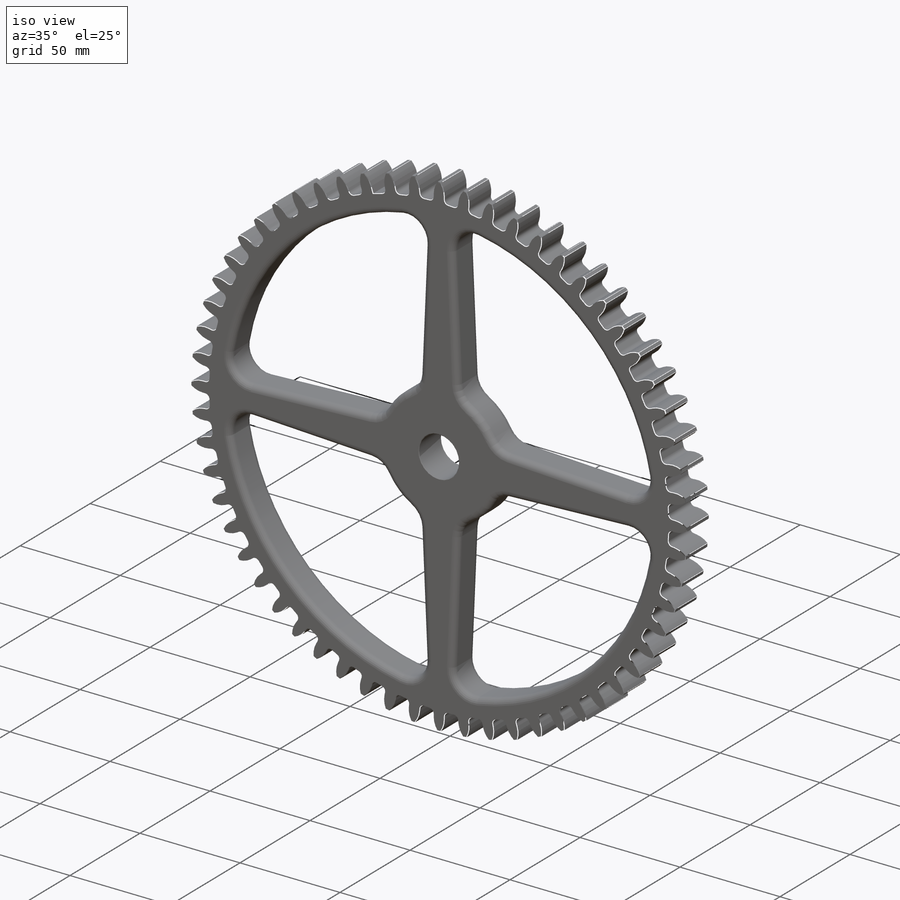
[diagram: iso view]
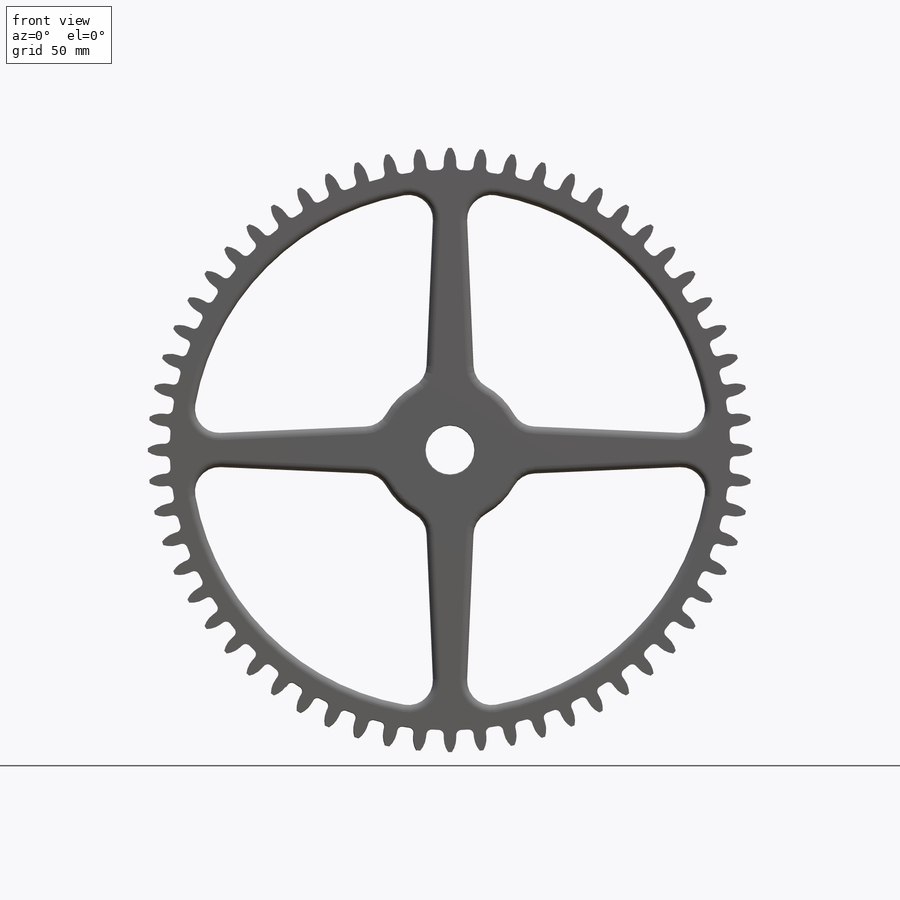
[diagram: front view]
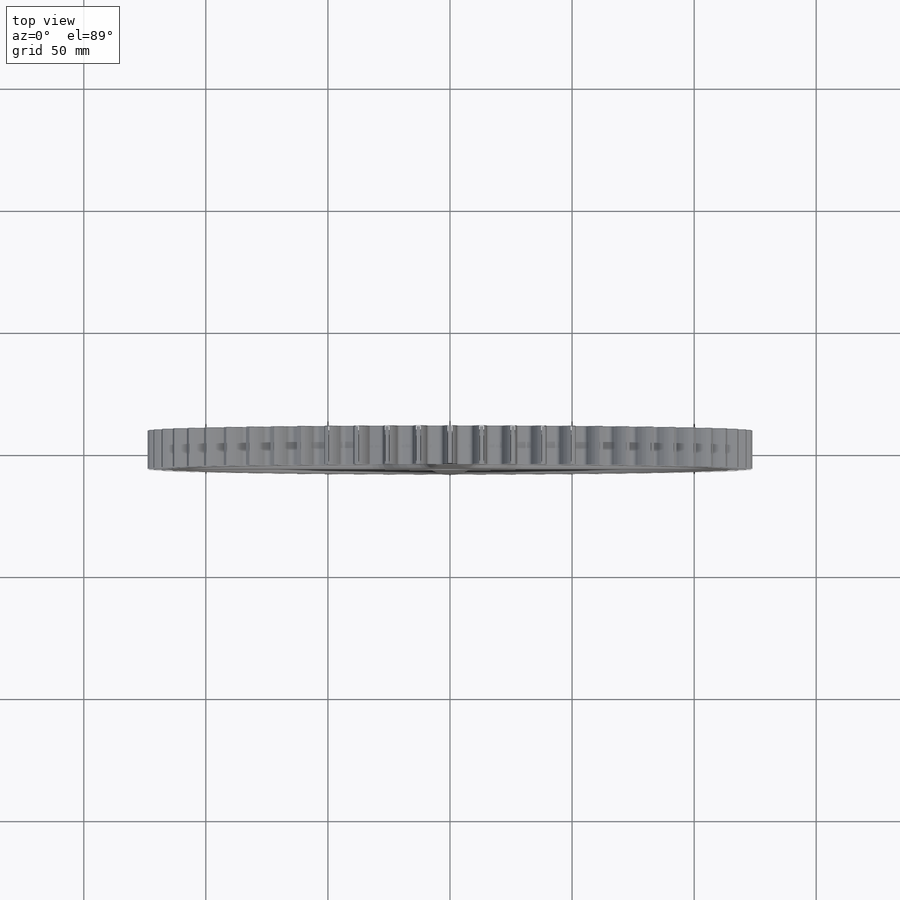
[diagram: top view]
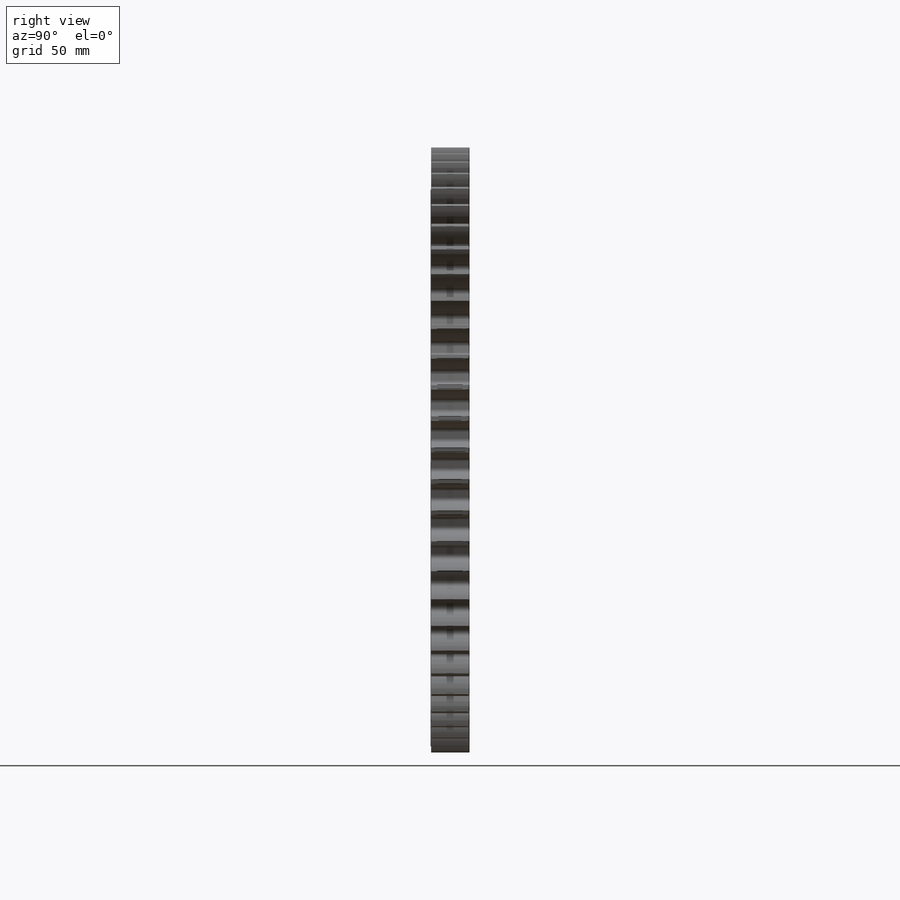
[diagram: right view]
SOLIDWORKS PART (.sldprt)
format: sldprt  version: not decoded by parser v0  size: 3,089,408 bytes
history: native  units: mm
features: plane x3, sketch x2, chamfer x2, material x1, extrude x1, cut_extrude x1, fillet x1 (+13 scaffold rows collapsed)
feature tree (24):
  scaffold x13  (default folders/planes/origin — collapsed)
  material  "Дуб"
  plane  "Спереди"
  plane  "Сверху"
  plane  "Справа"
  sketch  "Эскиз1"  dims[D1=248.0mm D2=230.0mm D3=236.66mm D5=20.0mm D7=1.905mm D8=20.0mm D4=5.6mm D6=60.0]
  extrude  "Бобышка-Вытянуть1"  Depth=16mm
  sketch  "Эскиз2"  dims[c1.D1=60.0mm c1.D2=212.0mm c1.D7=10.0mm c1.D3=~78.78968mm c2.D3=2.5deg c2.D4=~77.473244mm c3.D4=2.5deg c3.D5=6.5mm c3.D6=6.5mm c3.D8=4.0]
  cut_extrude  "Вырез-Вытянуть1"  Depth=16mm
  fillet  "Скругление1"  Radius=3mm
  chamfer  "Фаска1"  Distance=0.25mm Angle=45deg
  chamfer  "Скругление2"  Distance=0.25mm
decode coverage: 7 of 7 modeling features carry decoded parameters
note: ~ marks probable driven/reference dimensions
note: suppression state not decoded; provenance and decode notes live in map.json
